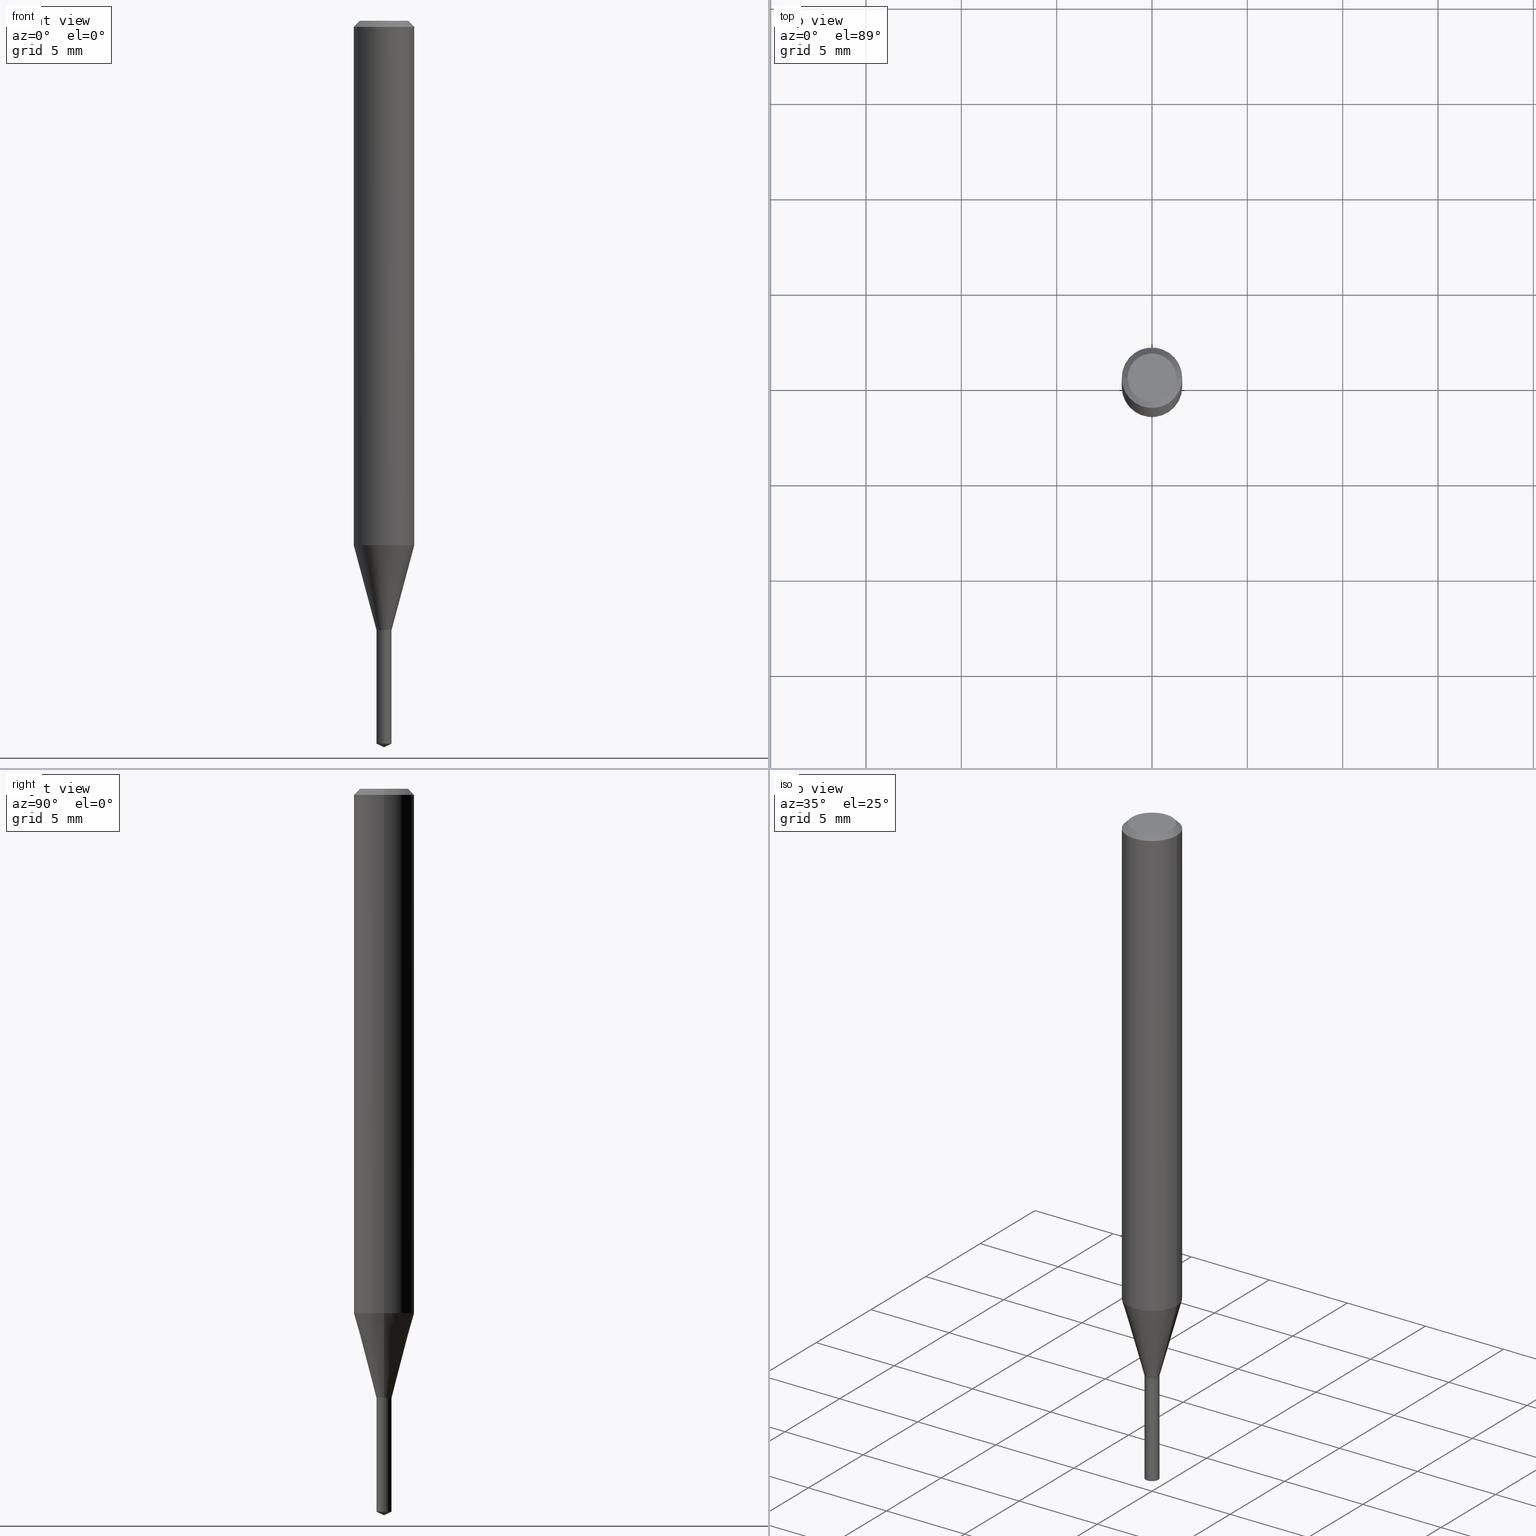
[diagram: canonical four-view strip — front | top / right | iso, engineering-drawing reading convention]
A machine part, canonical four-view strip (front | top / right | iso — engineering-drawing reading convention). The complete STEP part file that produces these views, byte-faithful:
ISO-10303-21;
HEADER;
FILE_DESCRIPTION (( 'STEP AP203' ),
    '1' );
FILE_NAME ('07139.STEP',
    '2024-04-23T19:40:43',
    ( '' ),
    ( '' ),
    'SwSTEP 2.0',
    'SolidWorks 2023',
    '' );
FILE_SCHEMA (( 'CONFIG_CONTROL_DESIGN' ));
ENDSEC;

DATA;
#1 = EDGE_CURVE ( 'NONE', #158, #121, #120, .T. ) ;
#2 = AXIS2_PLACEMENT_3D ( 'NONE', #185, #371, #26 ) ;
#3 = ORGANIZATION ( 'UNSPECIFIED', 'UNSPECIFIED', '' ) ;
#4 = EDGE_LOOP ( 'NONE', ( #486, #482, #43, #274 ) ) ;
#5 = MANIFOLD_SOLID_BREP ( 'Body-Move/Copy2[2]', #469 ) ;
#6 = LINE ( 'NONE', #311, #72 ) ;
#7 = PLANE ( 'NONE',  #237 ) ;
#8 = CARTESIAN_POINT ( 'NONE',  ( -0.01559999999999999928, -4.004738961382782309E-15, -1.099499999999999922 ) ) ;
#9 = CARTESIAN_POINT ( 'NONE',  ( 2.690015686803650369E-29, -3.840629472727460101E-15, -1.100000000000000089 ) ) ;
#10 = ADVANCED_FACE ( 'NONE', ( #386 ), #82, .T. ) ;
#11 =( CONVERSION_BASED_UNIT ( 'INCH', #88 ) LENGTH_UNIT ( ) NAMED_UNIT ( #369 ) );
#12 = FACE_OUTER_BOUND ( 'NONE', #69, .T. ) ;
#13 = AXIS2_PLACEMENT_3D ( 'NONE', #9, #358, #172 ) ;
#14 = EDGE_CURVE ( 'NONE', #121, #303, #164, .T. ) ;
#15 = CARTESIAN_POINT ( 'NONE',  ( 0.01559999999999999928, -3.947817949829943576E-15, -1.099499999999999922 ) ) ;
#16 = PLANE ( 'NONE',  #263 ) ;
#17 = LINE ( 'NONE', #79, #152 ) ;
#18 = ADVANCED_FACE ( 'NONE', ( #350 ), #7, .F. ) ;
#19 = DIRECTION ( 'NONE',  ( -6.982962677686265922E-15, -1.000000000000000000, 0.000000000000000000 ) ) ;
#20 = ADVANCED_FACE ( 'NONE', ( #40 ), #192, .T. ) ;
#21 = DIRECTION ( 'NONE',  ( 6.439704144416999588E-15, 0.9063077870366478273, 0.4226182617407039932 ) ) ;
#22 = CIRCLE ( 'NONE', #150, 0.06250000000000001388 ) ;
#23 = COORDINATED_UNIVERSAL_TIME_OFFSET ( 5, 0, .BEHIND. ) ;
#24 = CARTESIAN_POINT ( 'NONE',  ( 3.056836007731443605E-31, -4.364351673553964149E-17, -0.01250000000000009263 ) ) ;
#25 = PERSON_AND_ORGANIZATION ( #392, #3 ) ;
#26 = DIRECTION ( 'NONE',  ( 1.000000000000000000, -6.982962677686283277E-15, 0.000000000000000000 ) ) ;
#27 = ORIENTED_EDGE ( 'NONE', *, *, #445, .T. ) ;
#28 = DIRECTION ( 'NONE',  ( -1.000000000000000000, 6.982962677686265922E-15, 0.000000000000000000 ) ) ;
#29 = ORIENTED_EDGE ( 'NONE', *, *, #287, .T. ) ;
#30 = APPROVAL_STATUS ( 'not_yet_approved' ) ;
#31 = VECTOR ( 'NONE', #124, 39.37007874015748143 ) ;
#32 = EDGE_LOOP ( 'NONE', ( #189, #27, #105, #485 ) ) ;
#33 = ADVANCED_FACE ( 'NONE', ( #452 ), #302, .T. ) ;
#34 = DIRECTION ( 'NONE',  ( -2.445468806185136597E-29, 3.491481338843145583E-15, 1.000000000000000000 ) ) ;
#35 = ORIENTED_EDGE ( 'NONE', *, *, #107, .T. ) ;
#36 = ORIENTED_EDGE ( 'NONE', *, *, #343, .T. ) ;
#37 = LINE ( 'NONE', #196, #453 ) ;
#38 = AXIS2_PLACEMENT_3D ( 'NONE', #116, #270, #417 ) ;
#39 = AXIS2_PLACEMENT_3D ( 'NONE', #321, #468, #286 ) ;
#40 = FACE_OUTER_BOUND ( 'NONE', #418, .T. ) ;
#41 = CARTESIAN_POINT ( 'NONE',  ( -9.251224594084451282E-28, 1.323628004292452236E-13, 37.87007874015748143 ) ) ;
#42 = ADVANCED_FACE ( 'NONE', ( #162 ), #168, .F. ) ;
#43 = ORIENTED_EDGE ( 'NONE', *, *, #103, .T. ) ;
#44 = CYLINDRICAL_SURFACE ( 'NONE', #91, 0.01559999999999999928 ) ;
#45 = AXIS2_PLACEMENT_3D ( 'NONE', #425, #283, #47 ) ;
#46 = DIRECTION ( 'NONE',  ( -2.442957897581693293E-29, 3.495077102875318834E-15, 1.000000000000000000 ) ) ;
#47 = DIRECTION ( 'NONE',  ( 1.000000000000000000, -6.982962677686281699E-15, 0.000000000000000000 ) ) ;
#48 = EDGE_CURVE ( 'NONE', #303, #121, #22, .T. ) ;
#49 = ORIENTED_EDGE ( 'NONE', *, *, #14, .F. ) ;
#50 = CARTESIAN_POINT ( 'NONE',  ( 3.056836007731443605E-31, -4.364351673553964149E-17, -0.01250000000000009263 ) ) ;
#51 = EDGE_CURVE ( 'NONE', #222, #412, #282, .T. ) ;
#52 = DIRECTION ( 'NONE',  ( -2.445468806185136877E-29, 3.491481338843145188E-15, 1.000000000000000000 ) ) ;
#53 = CARTESIAN_POINT ( 'NONE',  ( 0.000000000000000000, 0.000000000000000000, 0.000000000000000000 ) ) ;
#54 = VECTOR ( 'NONE', #73, 39.37007874015748854 ) ;
#55 = VECTOR ( 'NONE', #322, 39.37007874015748143 ) ;
#56 = AXIS2_PLACEMENT_3D ( 'NONE', #41, #46, #304 ) ;
#57 = CARTESIAN_POINT ( 'NONE',  ( 0.06250000000000013878, -4.217593599933773657E-15, -1.082966817125024628 ) ) ;
#58 = DIRECTION ( 'NONE',  ( 6.982962677686265922E-15, 1.000000000000000000, -3.495077102875319228E-15 ) ) ;
#59 = DATE_AND_TIME ( #472, #308 ) ;
#60 = ADVANCED_FACE ( 'NONE', ( #397 ), #430, .F. ) ;
#61 = DIRECTION ( 'NONE',  ( -2.438088387897960049E-29, 3.491481338843145188E-15, 1.000000000000000000 ) ) ;
#62 = DIRECTION ( 'NONE',  ( -6.982962677686265922E-15, -1.000000000000000000, 0.000000000000000000 ) ) ;
#63 = PERSON_AND_ORGANIZATION ( #392, #3 ) ;
#64 = DIRECTION ( 'NONE',  ( 2.445468806185136597E-29, -3.491481338843145583E-15, -1.000000000000000000 ) ) ;
#65 = ORIENTED_EDGE ( 'NONE', *, *, #336, .F. ) ;
#66 = FACE_OUTER_BOUND ( 'NONE', #68, .T. ) ;
#67 = CC_DESIGN_DATE_AND_TIME_ASSIGNMENT ( #293, #251, ( #424 ) ) ;
#68 = EDGE_LOOP ( 'NONE', ( #269, #409, #232, #292 ) ) ;
#69 = EDGE_LOOP ( 'NONE', ( #458, #380, #476, #219 ) ) ;
#70 = AXIS2_PLACEMENT_3D ( 'NONE', #96, #250, #363 ) ;
#71 = EDGE_CURVE ( 'NONE', #195, #388, #438, .T. ) ;
#72 = VECTOR ( 'NONE', #84, 39.37007874015748143 ) ;
#73 = DIRECTION ( 'NONE',  ( 0.2588190451025281225, 1.565188264969568128E-15, 0.9659258262890662028 ) ) ;
#74 = ADVANCED_FACE ( 'NONE', ( #434 ), #231, .T. ) ;
#75 = ORIENTED_EDGE ( 'NONE', *, *, #103, .F. ) ;
#76 = CIRCLE ( 'NONE', #366, 0.06250000000000013878 ) ;
#77 = ORIENTED_EDGE ( 'NONE', *, *, #249, .F. ) ;
#78 = VERTEX_POINT ( 'NONE', #89 ) ;
#79 = CARTESIAN_POINT ( 'NONE',  ( 0.06250000000000001388, -4.724246415962604812E-16, -0.01250000000000009263 ) ) ;
#80 = ORIENTED_EDGE ( 'NONE', *, *, #419, .F. ) ;
#81 = DIRECTION ( 'NONE',  ( 0.000000000000000000, 0.000000000000000000, 1.000000000000000000 ) ) ;
#82 = CONICAL_SURFACE ( 'NONE', #56, 84.42940631927208983, 1.134464013796305792 ) ;
#83 = ORIENTED_EDGE ( 'NONE', *, *, #48, .F. ) ;
#84 = DIRECTION ( 'NONE',  ( -6.328713451373344135E-15, -0.9063077870366449407, 0.4226182617407102660 ) ) ;
#85 = CARTESIAN_POINT ( 'NONE',  ( 3.076399758180902206E-29, -4.392283524264677317E-15, -1.258000000000000007 ) ) ;
#86 = CARTESIAN_POINT ( 'NONE',  ( -0.01559999999999999928, 1.108446667785756239E-16, -7.673538740797652489E-31 ) ) ;
#87 = LINE ( 'NONE', #203, #31 ) ;
#88 = LENGTH_MEASURE_WITH_UNIT ( LENGTH_MEASURE( 0.02539999999999999897 ), #242 );
#89 = CARTESIAN_POINT ( 'NONE',  ( -0.01509999999999999884, -3.730688292453573756E-15, -1.100000000000000089 ) ) ;
#90 = CONICAL_SURFACE ( 'NONE', #213, 0.01559999999999999928, 0.2617993877991570684 ) ;
#91 = AXIS2_PLACEMENT_3D ( 'NONE', #396, #130, #202 ) ;
#92 = FACE_OUTER_BOUND ( 'NONE', #141, .T. ) ;
#93 = ADVANCED_FACE ( 'NONE', ( #244 ), #16, .F. ) ;
#94 = PERSON_AND_ORGANIZATION_ROLE ( 'design_supplier' ) ;
#95 = ADVANCED_BREP_SHAPE_REPRESENTATION ( '07139', ( #488, #5, #367 ), #325 ) ;
#96 = CARTESIAN_POINT ( 'NONE',  ( 0.000000000000000000, 0.000000000000000000, 0.000000000000000000 ) ) ;
#97 = APPROVAL_ROLE ( '' ) ;
#98 = ADVANCED_FACE ( 'NONE', ( #435 ), #248, .T. ) ;
#99 = CARTESIAN_POINT ( 'NONE',  ( 3.056836007731443605E-31, -4.364351673553964149E-17, -0.01250000000000009263 ) ) ;
#100 = CIRCLE ( 'NONE', #165, 0.01559999999999999928 ) ;
#101 = EDGE_LOOP ( 'NONE', ( #236, #149, #156, #241 ) ) ;
#102 = APPROVAL_DATE_TIME ( #220, #422 ) ;
#103 = EDGE_CURVE ( 'NONE', #423, #437, #87, .T. ) ;
#104 = DIRECTION ( 'NONE',  ( -2.445468806185136877E-29, 3.491481338843145188E-15, 1.000000000000000000 ) ) ;
#105 = ORIENTED_EDGE ( 'NONE', *, *, #48, .T. ) ;
#106 = CARTESIAN_POINT ( 'NONE',  ( 0.01559999999999999928, -4.501217742036583084E-15, -1.258000000000000007 ) ) ;
#107 = EDGE_CURVE ( 'NONE', #179, #381, #76, .T. ) ;
#108 = EDGE_LOOP ( 'NONE', ( #114, #312, #77 ) ) ;
#109 = AXIS2_PLACEMENT_3D ( 'NONE', #450, #342, #160 ) ;
#110 = ADVANCED_FACE ( 'NONE', ( #12 ), #90, .T. ) ;
#111 = AXIS2_PLACEMENT_3D ( 'NONE', #163, #348, #240 ) ;
#112 = CC_DESIGN_APPROVAL ( #387, ( #424 ) ) ;
#113 = CARTESIAN_POINT ( 'NONE',  ( 0.04999999999999999584, -4.077247707424184705E-16, 3.380025165673154903E-19 ) ) ;
#114 = ORIENTED_EDGE ( 'NONE', *, *, #51, .F. ) ;
#115 = ORIENTED_EDGE ( 'NONE', *, *, #193, .T. ) ;
#116 = CARTESIAN_POINT ( 'NONE',  ( 2.690015686803650369E-29, -3.840629472727460101E-15, -1.100000000000000089 ) ) ;
#117 = CONICAL_SURFACE ( 'NONE', #224, 0.06250000000000001388, 0.7853981633974450594 ) ;
#118 = CC_DESIGN_APPROVAL ( #422, ( #191 ) ) ;
#119 = EDGE_LOOP ( 'NONE', ( #394, #337 ) ) ;
#120 = LINE ( 'NONE', #341, #262 ) ;
#121 = VERTEX_POINT ( 'NONE', #209 ) ;
#122 = AXIS2_PLACEMENT_3D ( 'NONE', #218, #440, #62 ) ;
#123 = AXIS2_PLACEMENT_3D ( 'NONE', #161, #459, #389 ) ;
#124 = DIRECTION ( 'NONE',  ( -2.445468806185136877E-29, 3.491481338843145188E-15, 1.000000000000000000 ) ) ;
#125 = CARTESIAN_POINT ( 'NONE',  ( 0.01509999999999999884, -3.946072209160522861E-15, -1.100000000000000089 ) ) ;
#126 = DIRECTION ( 'NONE',  ( 1.000000000000000000, -6.982962677686266711E-15, 4.876176775795935793E-29 ) ) ;
#127 = PRODUCT_DEFINITION_SHAPE ( 'NONE', 'NONE',  #155 ) ;
#128 = CARTESIAN_POINT ( 'NONE',  ( 1.108446667786121827E-16, 0.01559999999999615514, -1.100000000000000089 ) ) ;
#129 = DIRECTION ( 'NONE',  ( 1.000000000000000000, -6.982962677686270655E-15, 0.000000000000000000 ) ) ;
#130 = DIRECTION ( 'NONE',  ( -2.442957897581693293E-29, 3.495077102875318834E-15, 1.000000000000000000 ) ) ;
#131 = DIRECTION ( 'NONE',  ( -2.445468806185136597E-29, 3.491481338843145583E-15, 1.000000000000000000 ) ) ;
#132 = CALENDAR_DATE ( 2024, 23, 4 ) ;
#133 = CARTESIAN_POINT ( 'NONE',  ( 0.01509999999999999884, -3.946072209160522861E-15, -1.100000000000000089 ) ) ;
#134 = EDGE_CURVE ( 'NONE', #388, #195, #398, .T. ) ;
#135 = APPROVAL_ROLE ( '' ) ;
#136 = CARTESIAN_POINT ( 'NONE',  ( -1.089342177718788348E-16, -0.01560000000000383996, -1.100000000000000089 ) ) ;
#137 = ORIENTED_EDGE ( 'NONE', *, *, #457, .T. ) ;
#138 = PERSON_AND_ORGANIZATION ( #392, #3 ) ;
#139 = ADVANCED_FACE ( 'NONE', ( #92 ), #400, .F. ) ;
#140 = AXIS2_PLACEMENT_3D ( 'NONE', #329, #403, #375 ) ;
#141 = EDGE_LOOP ( 'NONE', ( #65, #228, #261, #75 ) ) ;
#142 = MECHANICAL_CONTEXT ( 'NONE', #143, 'mechanical' ) ;
#143 = APPLICATION_CONTEXT ( 'configuration controlled 3d designs of mechanical parts and assemblies' ) ;
#144 = CYLINDRICAL_SURFACE ( 'NONE', #140, 0.01559999999999999928 ) ;
#145 = ORIENTED_EDGE ( 'NONE', *, *, #71, .F. ) ;
#146 = FACE_OUTER_BOUND ( 'NONE', #382, .T. ) ;
#147 = VERTEX_POINT ( 'NONE', #133 ) ;
#148 = DIRECTION ( 'NONE',  ( 2.445468806185136597E-29, -3.491481338843145583E-15, -1.000000000000000000 ) ) ;
#149 = ORIENTED_EDGE ( 'NONE', *, *, #300, .T. ) ;
#150 = AXIS2_PLACEMENT_3D ( 'NONE', #50, #131, #323 ) ;
#151 = AXIS2_PLACEMENT_3D ( 'NONE', #319, #361, #19 ) ;
#152 = VECTOR ( 'NONE', #464, 39.37007874015748143 ) ;
#153 = DIRECTION ( 'NONE',  ( -0.7071067811865452413, 2.468850131082233000E-15, -0.7071067811865497932 ) ) ;
#154 = DIRECTION ( 'NONE',  ( -2.445468806185136597E-29, 3.491481338843145583E-15, 1.000000000000000000 ) ) ;
#155 = PRODUCT_DEFINITION ( 'UNKNOWN', '', #191, #170 ) ;
#156 = ORIENTED_EDGE ( 'NONE', *, *, #281, .F. ) ;
#157 = AXIS2_PLACEMENT_3D ( 'NONE', #411, #223, #295 ) ;
#158 = VERTEX_POINT ( 'NONE', #280 ) ;
#159 = CARTESIAN_POINT ( 'NONE',  ( 0.06250000000000006939, -4.364351673553922118E-16, 3.047610484872463724E-30 ) ) ;
#160 = DIRECTION ( 'NONE',  ( 1.000000000000000000, -6.982962677686265922E-15, 0.000000000000000000 ) ) ;
#161 = CARTESIAN_POINT ( 'NONE',  ( -8.265746106709734507E-48, 1.180129479067563789E-33, 3.380025165646692144E-19 ) ) ;
#162 = FACE_OUTER_BOUND ( 'NONE', #4, .T. ) ;
#163 = CARTESIAN_POINT ( 'NONE',  ( -9.251224594084451282E-28, 1.323628004292452236E-13, 37.87007874015748143 ) ) ;
#164 = CIRCLE ( 'NONE', #109, 0.06250000000000001388 ) ;
#165 = AXIS2_PLACEMENT_3D ( 'NONE', #204, #313, #207 ) ;
#166 = LINE ( 'NONE', #180, #378 ) ;
#167 = CARTESIAN_POINT ( 'NONE',  ( 1.108446667786120964E-16, 0.01559999999999478124, -1.492725600532782027 ) ) ;
#168 = CYLINDRICAL_SURFACE ( 'NONE', #364, 0.01559999999999999928 ) ;
#169 = DIRECTION ( 'NONE',  ( 1.000000000000000000, -6.982962677686265922E-15, 4.876194921942043128E-29 ) ) ;
#170 = DESIGN_CONTEXT ( 'detailed design', #235, 'design' ) ;
#171 = EDGE_CURVE ( 'NONE', #423, #255, #307, .T. ) ;
#172 = DIRECTION ( 'NONE',  ( 1.000000000000000000, -6.982962677686281699E-15, 0.000000000000000000 ) ) ;
#173 = CALENDAR_DATE ( 2024, 23, 4 ) ;
#174 = DIRECTION ( 'NONE',  ( -2.445468806185136597E-29, 3.491481338843145583E-15, 1.000000000000000000 ) ) ;
#175 = CONICAL_SURFACE ( 'NONE', #347, 0.01559999999999999928, 0.2617993877991570684 ) ;
#176 = DIRECTION ( 'NONE',  ( -2.445468806185136597E-29, 3.491481338843145583E-15, 1.000000000000000000 ) ) ;
#177 = SECURITY_CLASSIFICATION_LEVEL ( 'unclassified' ) ;
#178 = CARTESIAN_POINT ( 'NONE',  ( 2.690015686803650369E-29, -3.840629472727460101E-15, -1.100000000000000089 ) ) ;
#179 = VERTEX_POINT ( 'NONE', #326 ) ;
#180 = CARTESIAN_POINT ( 'NONE',  ( -0.06250000000000006939, 4.440892098500631092E-16, -3.074334431409319617E-30 ) ) ;
#181 = AXIS2_PLACEMENT_3D ( 'NONE', #187, #176, #301 ) ;
#182 = ORIENTED_EDGE ( 'NONE', *, *, #345, .T. ) ;
#183 = APPROVAL_PERSON_ORGANIZATION ( #63, #309, #135 ) ;
#184 = PERSON_AND_ORGANIZATION ( #392, #3 ) ;
#185 = CARTESIAN_POINT ( 'NONE',  ( 3.076399758180902206E-29, -4.392283524264677317E-15, -1.258000000000000007 ) ) ;
#186 = ORIENTED_EDGE ( 'NONE', *, *, #229, .F. ) ;
#187 = CARTESIAN_POINT ( 'NONE',  ( 2.688792952400557567E-29, -3.838883732058038598E-15, -1.099499999999999922 ) ) ;
#188 = ORIENTED_EDGE ( 'NONE', *, *, #134, .F. ) ;
#189 = ORIENTED_EDGE ( 'NONE', *, *, #487, .F. ) ;
#190 = VECTOR ( 'NONE', #448, 39.37007874015748143 ) ;
#191 = PRODUCT_DEFINITION_FORMATION_WITH_SPECIFIED_SOURCE ( 'ANY', '', #428, .NOT_KNOWN. ) ;
#192 = CYLINDRICAL_SURFACE ( 'NONE', #446, 0.06250000000000006939 ) ;
#193 = EDGE_CURVE ( 'NONE', #412, #388, #473, .T. ) ;
#194 = EDGE_LOOP ( 'NONE', ( #306, #484 ) ) ;
#195 = VERTEX_POINT ( 'NONE', #463 ) ;
#196 = CARTESIAN_POINT ( 'NONE',  ( -0.01559999999999999928, -4.281438857486102063E-15, -1.258000000000000007 ) ) ;
#197 = CIRCLE ( 'NONE', #253, 0.06250000000000013878 ) ;
#198 = DIRECTION ( 'NONE',  ( 0.7071067811865218156, -2.468850131081987665E-15, 0.7071067811865732189 ) ) ;
#199 = APPROVAL_PERSON_ORGANIZATION ( #370, #422, #297 ) ;
#200 = EDGE_CURVE ( 'NONE', #179, #121, #166, .T. ) ;
#201 = CARTESIAN_POINT ( 'NONE',  ( 2.690015686803650369E-29, -3.840629472727460101E-15, -1.100000000000000089 ) ) ;
#202 = DIRECTION ( 'NONE',  ( -6.982962677686265922E-15, -1.000000000000000000, 0.000000000000000000 ) ) ;
#203 = CARTESIAN_POINT ( 'NONE',  ( 0.01559999999999999928, -1.089342177719057547E-16, 7.606835770241659199E-31 ) ) ;
#204 = CARTESIAN_POINT ( 'NONE',  ( 2.688792952400557567E-29, -3.838883732058038598E-15, -1.099499999999999922 ) ) ;
#205 = AXIS2_PLACEMENT_3D ( 'NONE', #314, #206, #460 ) ;
#206 = DIRECTION ( 'NONE',  ( -2.445468806185136597E-29, 3.491481338843145583E-15, 1.000000000000000000 ) ) ;
#207 = DIRECTION ( 'NONE',  ( 1.000000000000000000, -6.982962677686252511E-15, 0.000000000000000000 ) ) ;
#208 = DIRECTION ( 'NONE',  ( 1.000000000000000000, -6.982962677686270655E-15, 0.000000000000000000 ) ) ;
#209 = CARTESIAN_POINT ( 'NONE',  ( -0.06250000000000001388, -1.468311764806896186E-15, -0.01250000000000009263 ) ) ;
#210 = EDGE_CURVE ( 'NONE', #259, #412, #355, .T. ) ;
#211 = DIRECTION ( 'NONE',  ( 2.442957897581692732E-29, -3.495077102875319228E-15, -1.000000000000000000 ) ) ;
#212 = DATE_TIME_ROLE ( 'creation_date' ) ;
#213 = AXIS2_PLACEMENT_3D ( 'NONE', #399, #284, #352 ) ;
#214 = ADVANCED_FACE ( 'NONE', ( #146 ), #144, .T. ) ;
#215 = LINE ( 'NONE', #106, #54 ) ;
#216 = CIRCLE ( 'NONE', #123, 0.04999999999999999584 ) ;
#217 = CALENDAR_DATE ( 2024, 23, 4 ) ;
#218 = CARTESIAN_POINT ( 'NONE',  ( 3.649427794207723258E-29, -5.213235726862545823E-15, -1.492725600532782027 ) ) ;
#219 = ORIENTED_EDGE ( 'NONE', *, *, #107, .F. ) ;
#220 = DATE_AND_TIME ( #173, #462 ) ;
#221 = DIRECTION ( 'NONE',  ( 1.000000000000000000, -6.982962677686283277E-15, 0.000000000000000000 ) ) ;
#222 = VERTEX_POINT ( 'NONE', #444 ) ;
#223 = DIRECTION ( 'NONE',  ( -2.442957897581693293E-29, 3.495077102875318834E-15, 1.000000000000000000 ) ) ;
#224 = AXIS2_PLACEMENT_3D ( 'NONE', #99, #64, #254 ) ;
#225 = PRODUCT_RELATED_PRODUCT_CATEGORY ( 'detail', '', ( #428 ) ) ;
#226 = CARTESIAN_POINT ( 'NONE',  ( -0.01559999999999999928, -4.004738961382782309E-15, -1.258000000000000007 ) ) ;
#227 = ORIENTED_EDGE ( 'NONE', *, *, #300, .F. ) ;
#228 = ORIENTED_EDGE ( 'NONE', *, *, #451, .T. ) ;
#229 = EDGE_CURVE ( 'NONE', #423, #381, #215, .T. ) ;
#230 = DIRECTION ( 'NONE',  ( 2.438088387897960049E-29, -3.491481338843145188E-15, -1.000000000000000000 ) ) ;
#231 = CONICAL_SURFACE ( 'NONE', #13, 0.01509999999999999884, 0.7853981633974119747 ) ;
#232 = ORIENTED_EDGE ( 'NONE', *, *, #1, .T. ) ;
#233 = ORIENTED_EDGE ( 'NONE', *, *, #413, .F. ) ;
#234 = LINE ( 'NONE', #86, #265 ) ;
#235 = APPLICATION_CONTEXT ( 'configuration controlled 3d designs of mechanical parts and assemblies' ) ;
#236 = ORIENTED_EDGE ( 'NONE', *, *, #360, .T. ) ;
#237 = AXIS2_PLACEMENT_3D ( 'NONE', #277, #230, #385 ) ;
#238 = DIRECTION ( 'NONE',  ( -2.445468806185136597E-29, 3.491481338843145583E-15, 1.000000000000000000 ) ) ;
#239 = VECTOR ( 'NONE', #354, 39.37007874015748143 ) ;
#240 = DIRECTION ( 'NONE',  ( -6.982962677686268288E-15, -1.000000000000000000, 3.520397390770547744E-15 ) ) ;
#241 = ORIENTED_EDGE ( 'NONE', *, *, #372, .F. ) ;
#242 =( LENGTH_UNIT ( ) NAMED_UNIT ( * ) SI_UNIT ( $, .METRE. ) );
#243 = DIRECTION ( 'NONE',  ( 1.000000000000000000, -6.982962677686283277E-15, 0.000000000000000000 ) ) ;
#244 = FACE_OUTER_BOUND ( 'NONE', #119, .T. ) ;
#245 = CC_DESIGN_PERSON_AND_ORGANIZATION_ASSIGNMENT ( #335, #290, ( #428 ) ) ;
#246 = CIRCLE ( 'NONE', #45, 0.01509999999999999884 ) ;
#247 = LOCAL_TIME ( 15, 40, 43.00000000000000000, #328 ) ;
#248 = CYLINDRICAL_SURFACE ( 'NONE', #205, 0.06250000000000006939 ) ;
#249 = EDGE_CURVE ( 'NONE', #412, #259, #340, .T. ) ;
#250 = DIRECTION ( 'NONE',  ( -2.445468806185136597E-29, 3.491481338843145583E-15, 1.000000000000000000 ) ) ;
#251 = DATE_TIME_ROLE ( 'classification_date' ) ;
#252 = CARTESIAN_POINT ( 'NONE',  ( 2.648361569412850998E-29, -3.781158432578380410E-15, -1.082966817125024628 ) ) ;
#253 = AXIS2_PLACEMENT_3D ( 'NONE', #257, #490, #208 ) ;
#254 = DIRECTION ( 'NONE',  ( -1.000000000000000000, 6.982962677686265922E-15, 0.000000000000000000 ) ) ;
#255 = VERTEX_POINT ( 'NONE', #226 ) ;
#256 = SHAPE_DEFINITION_REPRESENTATION ( #127, #95 ) ;
#257 = CARTESIAN_POINT ( 'NONE',  ( 2.648361569412850998E-29, -3.781158432578380410E-15, -1.082966817125024628 ) ) ;
#258 = ADVANCED_FACE ( 'NONE', ( #298 ), #175, .T. ) ;
#259 = VERTEX_POINT ( 'NONE', #368 ) ;
#260 = CARTESIAN_POINT ( 'NONE',  ( -0.01509999999999999884, -3.733337519627684957E-15, -1.100000000000000089 ) ) ;
#261 = ORIENTED_EDGE ( 'NONE', *, *, #413, .T. ) ;
#262 = VECTOR ( 'NONE', #153, 39.37007874015748143 ) ;
#263 = AXIS2_PLACEMENT_3D ( 'NONE', #201, #211, #58 ) ;
#264 = EDGE_LOOP ( 'NONE', ( #227, #36, #339, #233 ) ) ;
#265 = VECTOR ( 'NONE', #52, 39.37007874015748143 ) ;
#266 = ADVANCED_FACE ( 'NONE', ( #332 ), #415, .T. ) ;
#267 = LINE ( 'NONE', #260, #432 ) ;
#268 = CC_DESIGN_PERSON_AND_ORGANIZATION_ASSIGNMENT ( #442, #477, ( #191 ) ) ;
#269 = ORIENTED_EDGE ( 'NONE', *, *, #445, .F. ) ;
#270 = DIRECTION ( 'NONE',  ( -2.445468806185136597E-29, 3.491481338843145583E-15, 1.000000000000000000 ) ) ;
#271 = CLOSED_SHELL ( 'NONE', ( #214, #10, #362, #416, #93 ) ) ;
#272 = AXIS2_PLACEMENT_3D ( 'NONE', #178, #406, #478 ) ;
#273 = ORIENTED_EDGE ( 'NONE', *, *, #210, .T. ) ;
#274 = ORIENTED_EDGE ( 'NONE', *, *, #281, .T. ) ;
#275 = CC_DESIGN_PERSON_AND_ORGANIZATION_ASSIGNMENT ( #184, #408, ( #155 ) ) ;
#276 = FACE_OUTER_BOUND ( 'NONE', #108, .T. ) ;
#277 = CARTESIAN_POINT ( 'NONE',  ( -4.132873053354867254E-48, 5.900647395337818946E-34, 1.690012582823346072E-19 ) ) ;
#278 = CIRCLE ( 'NONE', #181, 0.01559999999999999928 ) ;
#279 = APPLICATION_PROTOCOL_DEFINITION ( 'international standard', 'config_control_design', 1994, #143 ) ;
#280 = CARTESIAN_POINT ( 'NONE',  ( -0.04999999999999999584, 3.709698922520826725E-16, 3.380025165621512536E-19 ) ) ;
#281 = EDGE_CURVE ( 'NONE', #437, #479, #278, .T. ) ;
#282 = LINE ( 'NONE', #426, #294 ) ;
#283 = DIRECTION ( 'NONE',  ( -2.445468806185136597E-29, 3.491481338843145583E-15, 1.000000000000000000 ) ) ;
#284 = DIRECTION ( 'NONE',  ( -2.445468806185136597E-29, 3.491481338843145583E-15, 1.000000000000000000 ) ) ;
#285 = APPROVAL_DATE_TIME ( #405, #387 ) ;
#286 = DIRECTION ( 'NONE',  ( -6.982962677686265922E-15, -1.000000000000000000, 0.000000000000000000 ) ) ;
#287 = EDGE_CURVE ( 'NONE', #259, #195, #327, .T. ) ;
#288 = APPROVAL_STATUS ( 'not_yet_approved' ) ;
#289 = DIRECTION ( 'NONE',  ( 1.000000000000000000, -6.982962677686265922E-15, 4.876176775795935793E-29 ) ) ;
#290 = PERSON_AND_ORGANIZATION_ROLE ( 'design_owner' ) ;
#291 = CARTESIAN_POINT ( 'NONE',  ( 0.06250000000000001388, -4.800786840909313294E-16, -0.01250000000000009263 ) ) ;
#292 = ORIENTED_EDGE ( 'NONE', *, *, #14, .T. ) ;
#293 = DATE_AND_TIME ( #217, #247 ) ;
#294 = VECTOR ( 'NONE', #21, 39.37007874015748854 ) ;
#295 = DIRECTION ( 'NONE',  ( -6.982962677686265922E-15, -1.000000000000000000, 0.000000000000000000 ) ) ;
#296 = ORIENTED_EDGE ( 'NONE', *, *, #210, .F. ) ;
#297 = APPROVAL_ROLE ( '' ) ;
#298 = FACE_OUTER_BOUND ( 'NONE', #334, .T. ) ;
#299 = VERTEX_POINT ( 'NONE', #113 ) ;
#300 = EDGE_CURVE ( 'NONE', #78, #479, #267, .T. ) ;
#301 = DIRECTION ( 'NONE',  ( 1.000000000000000000, -6.982962677686252511E-15, 0.000000000000000000 ) ) ;
#302 = CONICAL_SURFACE ( 'NONE', #38, 0.01509999999999999884, 0.7853981633974119747 ) ;
#303 = VERTEX_POINT ( 'NONE', #291 ) ;
#304 = DIRECTION ( 'NONE',  ( -6.982962677686268288E-15, -1.000000000000000000, 3.520397390770547744E-15 ) ) ;
#305 = DIRECTION ( 'NONE',  ( 1.000000000000000000, -6.982962677686267499E-15, 4.876176775795936353E-29 ) ) ;
#306 = ORIENTED_EDGE ( 'NONE', *, *, #353, .T. ) ;
#307 = CIRCLE ( 'NONE', #481, 0.01559999999999999928 ) ;
#308 = LOCAL_TIME ( 15, 40, 43.00000000000000000, #374 ) ;
#309 = APPROVAL ( #433, 'UNSPECIFIED' ) ;
#310 = ORIENTED_EDGE ( 'NONE', *, *, #200, .F. ) ;
#311 = CARTESIAN_POINT ( 'NONE',  ( 3.664436846372539659E-29, -5.242615654312978645E-15, -1.500000000000000222 ) ) ;
#312 = ORIENTED_EDGE ( 'NONE', *, *, #419, .T. ) ;
#313 = DIRECTION ( 'NONE',  ( -2.445468806185136597E-29, 3.491481338843145583E-15, 1.000000000000000000 ) ) ;
#314 = CARTESIAN_POINT ( 'NONE',  ( 0.000000000000000000, 0.000000000000000000, 0.000000000000000000 ) ) ;
#315 = AXIS2_PLACEMENT_3D ( 'NONE', #429, #61, #289 ) ;
#316 = CIRCLE ( 'NONE', #470, 0.04999999999999999584 ) ;
#317 = ADVANCED_FACE ( 'NONE', ( #66 ), #117, .T. ) ;
#318 = CARTESIAN_POINT ( 'NONE',  ( 0.01559999999999999928, -4.501217742036583084E-15, -1.258000000000000007 ) ) ;
#319 = CARTESIAN_POINT ( 'NONE',  ( 2.690015686803650369E-29, -3.840629472727460101E-15, -1.100000000000000089 ) ) ;
#320 = FACE_OUTER_BOUND ( 'NONE', #443, .T. ) ;
#321 = CARTESIAN_POINT ( 'NONE',  ( 2.690015686803650369E-29, -3.840629472727460101E-15, -1.100000000000000089 ) ) ;
#322 = DIRECTION ( 'NONE',  ( -2.445468806185136877E-29, 3.491481338843145188E-15, 1.000000000000000000 ) ) ;
#323 = DIRECTION ( 'NONE',  ( 1.000000000000000000, -6.982962677686265922E-15, 0.000000000000000000 ) ) ;
#324 = APPROVAL_DATE_TIME ( #59, #309 ) ;
#325 =( GEOMETRIC_REPRESENTATION_CONTEXT ( 3 ) GLOBAL_UNCERTAINTY_ASSIGNED_CONTEXT ( ( #365 ) ) GLOBAL_UNIT_ASSIGNED_CONTEXT ( ( #11, #393, #351 ) ) REPRESENTATION_CONTEXT ( 'NONE', 'WORKASPACE' ) );
#326 = CARTESIAN_POINT ( 'NONE',  ( -0.06250000000000013878, -3.337069222728317400E-15, -1.082966817125024628 ) ) ;
#327 = LINE ( 'NONE', #136, #190 ) ;
#328 = COORDINATED_UNIVERSAL_TIME_OFFSET ( 5, 0, .BEHIND. ) ;
#329 = CARTESIAN_POINT ( 'NONE',  ( 2.690015686803650369E-29, -3.840629472727460101E-15, -1.100000000000000089 ) ) ;
#330 = EDGE_LOOP ( 'NONE', ( #310, #35, #137, #49 ) ) ;
#331 = CARTESIAN_POINT ( 'NONE',  ( -8.265746106709734507E-48, 1.180129479067563789E-33, 3.380025165646692144E-19 ) ) ;
#332 = FACE_OUTER_BOUND ( 'NONE', #32, .T. ) ;
#333 = LOCAL_TIME ( 15, 40, 43.00000000000000000, #436 ) ;
#334 = EDGE_LOOP ( 'NONE', ( #449, #346, #455, #186 ) ) ;
#335 = PERSON_AND_ORGANIZATION ( #392, #3 ) ;
#336 = EDGE_CURVE ( 'NONE', #255, #423, #461, .T. ) ;
#337 = ORIENTED_EDGE ( 'NONE', *, *, #134, .T. ) ;
#338 = CC_DESIGN_PERSON_AND_ORGANIZATION_ASSIGNMENT ( #138, #483, ( #424 ) ) ;
#339 = ORIENTED_EDGE ( 'NONE', *, *, #372, .T. ) ;
#340 = CIRCLE ( 'NONE', #122, 0.01560000000000000102 ) ;
#341 = CARTESIAN_POINT ( 'NONE',  ( -0.06250000000000001388, 3.927916506198521080E-16, -0.01250000000000009263 ) ) ;
#342 = DIRECTION ( 'NONE',  ( -2.445468806185136597E-29, 3.491481338843145583E-15, 1.000000000000000000 ) ) ;
#343 = EDGE_CURVE ( 'NONE', #78, #147, #410, .T. ) ;
#344 = ORIENTED_EDGE ( 'NONE', *, *, #287, .F. ) ;
#345 = EDGE_CURVE ( 'NONE', #381, #179, #197, .T. ) ;
#346 = ORIENTED_EDGE ( 'NONE', *, *, #349, .T. ) ;
#347 = AXIS2_PLACEMENT_3D ( 'NONE', #475, #34, #221 ) ;
#348 = DIRECTION ( 'NONE',  ( -2.442957897581693293E-29, 3.495077102875318834E-15, 1.000000000000000000 ) ) ;
#349 = EDGE_CURVE ( 'NONE', #255, #179, #37, .T. ) ;
#350 = FACE_OUTER_BOUND ( 'NONE', #194, .T. ) ;
#351 =( NAMED_UNIT ( * ) SI_UNIT ( $, .STERADIAN. ) SOLID_ANGLE_UNIT ( ) );
#352 = DIRECTION ( 'NONE',  ( 1.000000000000000000, -6.982962677686283277E-15, 0.000000000000000000 ) ) ;
#353 = EDGE_CURVE ( 'NONE', #158, #299, #316, .T. ) ;
#354 = DIRECTION ( 'NONE',  ( -2.442957897581693293E-29, 3.495077102875319228E-15, 1.000000000000000000 ) ) ;
#355 = CIRCLE ( 'NONE', #157, 0.01560000000000000102 ) ;
#356 = CC_DESIGN_SECURITY_CLASSIFICATION ( #424, ( #191 ) ) ;
#357 = LINE ( 'NONE', #125, #391 ) ;
#358 = DIRECTION ( 'NONE',  ( -2.445468806185136597E-29, 3.491481338843145583E-15, 1.000000000000000000 ) ) ;
#359 = DIRECTION ( 'NONE',  ( 1.000000000000000000, 0.000000000000000000, 0.000000000000000000 ) ) ;
#360 = EDGE_CURVE ( 'NONE', #147, #78, #246, .T. ) ;
#361 = DIRECTION ( 'NONE',  ( -2.442957897581693293E-29, 3.495077102875318834E-15, 1.000000000000000000 ) ) ;
#362 = ADVANCED_FACE ( 'NONE', ( #276 ), #383, .T. ) ;
#363 = DIRECTION ( 'NONE',  ( 1.000000000000000000, -6.982962677686266711E-15, 4.876176775795935793E-29 ) ) ;
#364 = AXIS2_PLACEMENT_3D ( 'NONE', #53, #395, #126 ) ;
#365 = UNCERTAINTY_MEASURE_WITH_UNIT (LENGTH_MEASURE( 1.000000000000000082E-05 ), #11, 'distance_accuracy_value', 'NONE');
#366 = AXIS2_PLACEMENT_3D ( 'NONE', #252, #466, #129 ) ;
#367 = AXIS2_PLACEMENT_3D ( 'NONE', #427, #81, #359 ) ;
#368 = CARTESIAN_POINT ( 'NONE',  ( -1.089342177718692205E-16, -0.01560000000000521039, -1.492725600532782027 ) ) ;
#369 = DIMENSIONAL_EXPONENTS ( 1.000000000000000000, 0.000000000000000000, 0.000000000000000000, 0.000000000000000000, 0.000000000000000000, 0.000000000000000000, 0.000000000000000000 ) ;
#370 = PERSON_AND_ORGANIZATION ( #392, #3 ) ;
#371 = DIRECTION ( 'NONE',  ( -2.445468806185136597E-29, 3.491481338843145583E-15, 1.000000000000000000 ) ) ;
#372 = EDGE_CURVE ( 'NONE', #147, #437, #357, .T. ) ;
#373 = EDGE_LOOP ( 'NONE', ( #376, #414 ) ) ;
#374 = COORDINATED_UNIVERSAL_TIME_OFFSET ( 5, 0, .BEHIND. ) ;
#375 = DIRECTION ( 'NONE',  ( -6.982962677686265922E-15, -1.000000000000000000, 0.000000000000000000 ) ) ;
#376 = ORIENTED_EDGE ( 'NONE', *, *, #360, .F. ) ;
#377 = APPLICATION_PROTOCOL_DEFINITION ( 'international standard', 'config_control_design', 1994, #235 ) ;
#378 = VECTOR ( 'NONE', #104, 39.37007874015748143 ) ;
#379 = DIRECTION ( 'NONE',  ( -0.7071067811865218156, 7.493145998870261075E-15, 0.7071067811865732189 ) ) ;
#380 = ORIENTED_EDGE ( 'NONE', *, *, #336, .T. ) ;
#381 = VERTEX_POINT ( 'NONE', #57 ) ;
#382 = EDGE_LOOP ( 'NONE', ( #273, #115, #145, #344 ) ) ;
#383 = CONICAL_SURFACE ( 'NONE', #111, 84.42940631927208983, 1.134464013796305792 ) ;
#384 = APPROVAL_PERSON_ORGANIZATION ( #439, #387, #97 ) ;
#385 = DIRECTION ( 'NONE',  ( -1.000000000000000000, 6.982962677686265922E-15, -4.876176775795935793E-29 ) ) ;
#386 = FACE_OUTER_BOUND ( 'NONE', #441, .T. ) ;
#387 = APPROVAL ( #288, 'UNSPECIFIED' ) ;
#388 = VERTEX_POINT ( 'NONE', #128 ) ;
#389 = DIRECTION ( 'NONE',  ( 1.000000000000000000, -6.982962677686265922E-15, 4.876194921942043128E-29 ) ) ;
#390 = ORIENTED_EDGE ( 'NONE', *, *, #249, .T. ) ;
#391 = VECTOR ( 'NONE', #198, 39.37007874015748143 ) ;
#392 = PERSON ( 'UNSPECIFIED', 'UNSPECIFIED', 'UNSPECIFIED', ('UNSPECIFIED'), ('UNSPECIFIED'), ('UNSPECIFIED') ) ;
#393 =( NAMED_UNIT ( * ) PLANE_ANGLE_UNIT ( ) SI_UNIT ( $, .RADIAN. ) );
#394 = ORIENTED_EDGE ( 'NONE', *, *, #71, .T. ) ;
#395 = DIRECTION ( 'NONE',  ( -2.445468806185136597E-29, 3.491481338843145583E-15, 1.000000000000000000 ) ) ;
#396 = CARTESIAN_POINT ( 'NONE',  ( 2.690015686803650369E-29, -3.840629472727460101E-15, -1.100000000000000089 ) ) ;
#397 = FACE_OUTER_BOUND ( 'NONE', #373, .T. ) ;
#398 = CIRCLE ( 'NONE', #151, 0.01559999999999999928 ) ;
#399 = CARTESIAN_POINT ( 'NONE',  ( 3.076399758180902206E-29, -4.392283524264677317E-15, -1.258000000000000007 ) ) ;
#400 = CYLINDRICAL_SURFACE ( 'NONE', #70, 0.01559999999999999928 ) ;
#401 = CARTESIAN_POINT ( 'NONE',  ( 1.108446667786025068E-16, 0.01559999999999615687, -1.100000000000000089 ) ) ;
#402 = DATE_AND_TIME ( #132, #333 ) ;
#403 = DIRECTION ( 'NONE',  ( -2.442957897581693293E-29, 3.495077102875318834E-15, 1.000000000000000000 ) ) ;
#404 = ORIENTED_EDGE ( 'NONE', *, *, #200, .T. ) ;
#405 = DATE_AND_TIME ( #480, #471 ) ;
#406 = DIRECTION ( 'NONE',  ( -2.445468806185136597E-29, 3.491481338843145583E-15, 1.000000000000000000 ) ) ;
#407 = ORIENTED_EDGE ( 'NONE', *, *, #51, .T. ) ;
#408 = PERSON_AND_ORGANIZATION_ROLE ( 'creator' ) ;
#409 = ORIENTED_EDGE ( 'NONE', *, *, #353, .F. ) ;
#410 = CIRCLE ( 'NONE', #272, 0.01509999999999999884 ) ;
#411 = CARTESIAN_POINT ( 'NONE',  ( 3.649427794207723258E-29, -5.213235726862545823E-15, -1.492725600532782027 ) ) ;
#412 = VERTEX_POINT ( 'NONE', #167 ) ;
#413 = EDGE_CURVE ( 'NONE', #479, #437, #100, .T. ) ;
#414 = ORIENTED_EDGE ( 'NONE', *, *, #343, .F. ) ;
#415 = CONICAL_SURFACE ( 'NONE', #447, 0.06250000000000001388, 0.7853981633974450594 ) ;
#416 = ADVANCED_FACE ( 'NONE', ( #320 ), #44, .T. ) ;
#417 = DIRECTION ( 'NONE',  ( 1.000000000000000000, -6.982962677686281699E-15, 0.000000000000000000 ) ) ;
#418 = EDGE_LOOP ( 'NONE', ( #182, #404, #83, #456 ) ) ;
#419 = EDGE_CURVE ( 'NONE', #222, #259, #6, .T. ) ;
#420 = LINE ( 'NONE', #159, #55 ) ;
#421 = ORIENTED_EDGE ( 'NONE', *, *, #193, .F. ) ;
#422 = APPROVAL ( #30, 'UNSPECIFIED' ) ;
#423 = VERTEX_POINT ( 'NONE', #318 ) ;
#424 = SECURITY_CLASSIFICATION ( '', '', #177 ) ;
#425 = CARTESIAN_POINT ( 'NONE',  ( 2.690015686803650369E-29, -3.840629472727460101E-15, -1.100000000000000089 ) ) ;
#426 = CARTESIAN_POINT ( 'NONE',  ( 3.670009284250152623E-29, -5.234704973442197256E-15, -1.500000000000000222 ) ) ;
#427 = CARTESIAN_POINT ( 'NONE',  ( 0.000000000000000000, 0.000000000000000000, 0.000000000000000000 ) ) ;
#428 = PRODUCT ( '07139', '07139', '', ( #142 ) ) ;
#429 = CARTESIAN_POINT ( 'NONE',  ( 2.690015686803650369E-29, -3.840629472727460101E-15, -1.100000000000000089 ) ) ;
#430 = PLANE ( 'NONE',  #315 ) ;
#431 = CC_DESIGN_DATE_AND_TIME_ASSIGNMENT ( #402, #212, ( #155 ) ) ;
#432 = VECTOR ( 'NONE', #379, 39.37007874015748143 ) ;
#433 = APPROVAL_STATUS ( 'not_yet_approved' ) ;
#434 = FACE_OUTER_BOUND ( 'NONE', #101, .T. ) ;
#435 = FACE_OUTER_BOUND ( 'NONE', #330, .T. ) ;
#436 = COORDINATED_UNIVERSAL_TIME_OFFSET ( 5, 0, .BEHIND. ) ;
#437 = VERTEX_POINT ( 'NONE', #15 ) ;
#438 = CIRCLE ( 'NONE', #39, 0.01559999999999999928 ) ;
#439 = PERSON_AND_ORGANIZATION ( #392, #3 ) ;
#440 = DIRECTION ( 'NONE',  ( -2.442957897581693293E-29, 3.495077102875318834E-15, 1.000000000000000000 ) ) ;
#441 = EDGE_LOOP ( 'NONE', ( #80, #407, #296 ) ) ;
#442 = PERSON_AND_ORGANIZATION ( #392, #3 ) ;
#443 = EDGE_LOOP ( 'NONE', ( #421, #390, #29, #188 ) ) ;
#444 = CARTESIAN_POINT ( 'NONE',  ( 3.664436846372539659E-29, -5.242615654312978645E-15, -1.500000000000000222 ) ) ;
#445 = EDGE_CURVE ( 'NONE', #299, #303, #17, .T. ) ;
#446 = AXIS2_PLACEMENT_3D ( 'NONE', #489, #154, #305 ) ;
#447 = AXIS2_PLACEMENT_3D ( 'NONE', #24, #148, #28 ) ;
#448 = DIRECTION ( 'NONE',  ( -2.442957897581693293E-29, 3.495077102875319228E-15, 1.000000000000000000 ) ) ;
#449 = ORIENTED_EDGE ( 'NONE', *, *, #171, .T. ) ;
#450 = CARTESIAN_POINT ( 'NONE',  ( 3.056836007731443605E-31, -4.364351673553964149E-17, -0.01250000000000009263 ) ) ;
#451 = EDGE_CURVE ( 'NONE', #255, #479, #234, .T. ) ;
#452 = FACE_OUTER_BOUND ( 'NONE', #264, .T. ) ;
#453 = VECTOR ( 'NONE', #467, 39.37007874015748854 ) ;
#454 = CC_DESIGN_APPROVAL ( #309, ( #155 ) ) ;
#455 = ORIENTED_EDGE ( 'NONE', *, *, #345, .F. ) ;
#456 = ORIENTED_EDGE ( 'NONE', *, *, #457, .F. ) ;
#457 = EDGE_CURVE ( 'NONE', #381, #303, #420, .T. ) ;
#458 = ORIENTED_EDGE ( 'NONE', *, *, #349, .F. ) ;
#459 = DIRECTION ( 'NONE',  ( -2.445468806185136597E-29, 3.491481338843145583E-15, 1.000000000000000000 ) ) ;
#460 = DIRECTION ( 'NONE',  ( 1.000000000000000000, -6.982962677686267499E-15, 4.876176775795936353E-29 ) ) ;
#461 = CIRCLE ( 'NONE', #2, 0.01559999999999999928 ) ;
#462 = LOCAL_TIME ( 15, 40, 43.00000000000000000, #23 ) ;
#463 = CARTESIAN_POINT ( 'NONE',  ( -1.089342177718788348E-16, -0.01560000000000383996, -1.100000000000000089 ) ) ;
#464 = DIRECTION ( 'NONE',  ( 0.7071067811865452413, -7.319954787623248157E-15, -0.7071067811865497932 ) ) ;
#465 = CC_DESIGN_PERSON_AND_ORGANIZATION_ASSIGNMENT ( #25, #94, ( #191 ) ) ;
#466 = DIRECTION ( 'NONE',  ( -2.445468806185136597E-29, 3.491481338843145583E-15, 1.000000000000000000 ) ) ;
#467 = DIRECTION ( 'NONE',  ( -0.2588190451025281225, 5.211531920934590485E-15, 0.9659258262890662028 ) ) ;
#468 = DIRECTION ( 'NONE',  ( -2.442957897581693293E-29, 3.495077102875318834E-15, 1.000000000000000000 ) ) ;
#469 = CLOSED_SHELL ( 'NONE', ( #74, #266, #20, #258, #139, #42, #110, #98, #317, #18, #60, #33 ) ) ;
#470 = AXIS2_PLACEMENT_3D ( 'NONE', #331, #238, #169 ) ;
#471 = LOCAL_TIME ( 15, 40, 43.00000000000000000, #474 ) ;
#472 = CALENDAR_DATE ( 2024, 23, 4 ) ;
#473 = LINE ( 'NONE', #401, #239 ) ;
#474 = COORDINATED_UNIVERSAL_TIME_OFFSET ( 5, 0, .BEHIND. ) ;
#475 = CARTESIAN_POINT ( 'NONE',  ( 3.076399758180902206E-29, -4.392283524264677317E-15, -1.258000000000000007 ) ) ;
#476 = ORIENTED_EDGE ( 'NONE', *, *, #229, .T. ) ;
#477 = PERSON_AND_ORGANIZATION_ROLE ( 'creator' ) ;
#478 = DIRECTION ( 'NONE',  ( 1.000000000000000000, -6.982962677686281699E-15, 0.000000000000000000 ) ) ;
#479 = VERTEX_POINT ( 'NONE', #8 ) ;
#480 = CALENDAR_DATE ( 2024, 23, 4 ) ;
#481 = AXIS2_PLACEMENT_3D ( 'NONE', #85, #174, #243 ) ;
#482 = ORIENTED_EDGE ( 'NONE', *, *, #171, .F. ) ;
#483 = PERSON_AND_ORGANIZATION_ROLE ( 'classification_officer' ) ;
#484 = ORIENTED_EDGE ( 'NONE', *, *, #487, .T. ) ;
#485 = ORIENTED_EDGE ( 'NONE', *, *, #1, .F. ) ;
#486 = ORIENTED_EDGE ( 'NONE', *, *, #451, .F. ) ;
#487 = EDGE_CURVE ( 'NONE', #299, #158, #216, .T. ) ;
#488 = MANIFOLD_SOLID_BREP ( 'Body-Move/Copy2[1]', #271 ) ;
#489 = CARTESIAN_POINT ( 'NONE',  ( 0.000000000000000000, 0.000000000000000000, 0.000000000000000000 ) ) ;
#490 = DIRECTION ( 'NONE',  ( -2.445468806185136597E-29, 3.491481338843145583E-15, 1.000000000000000000 ) ) ;
ENDSEC;
END-ISO-10303-21;
